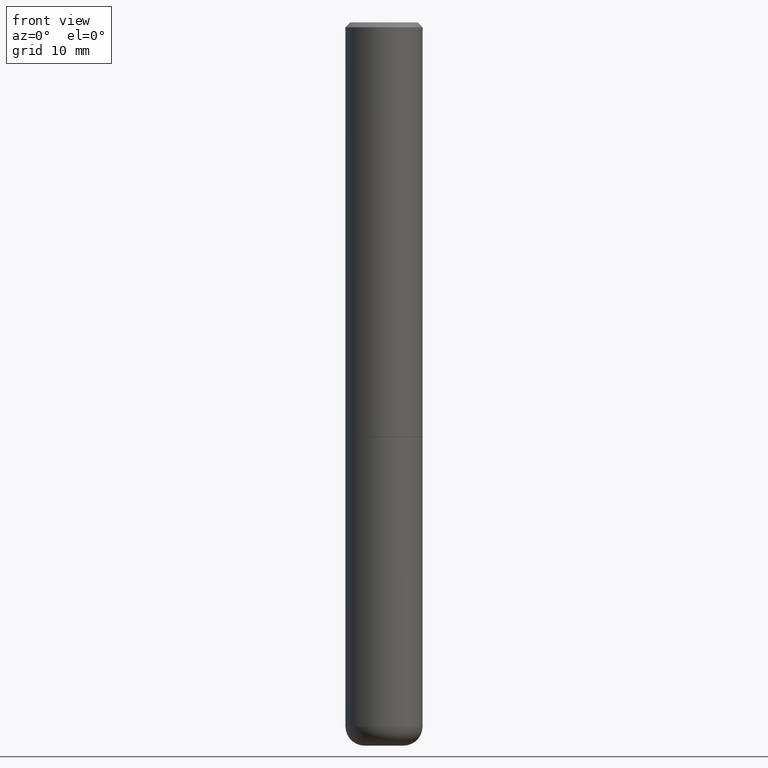
[diagram: clean part render]
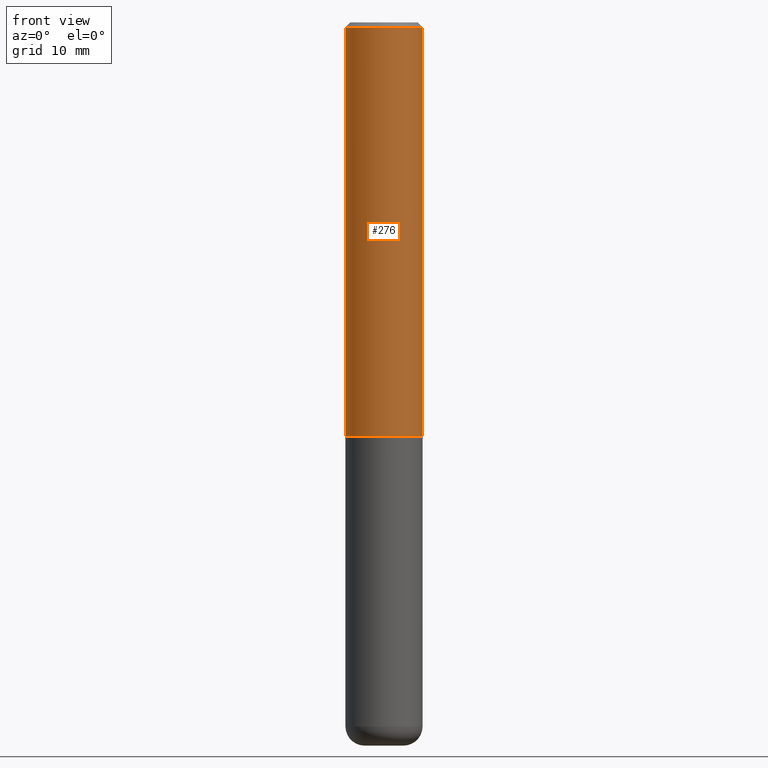
[diagram: same view with one face highlighted and labeled with its STEP entity id]
A machine part, front view. The second image highlights one B-rep face of the part: STEP entity #276.
In plain terms, the highlighted cylindrical surface (partial cylindrical patch) has radius 4.0005 mm, axis along (-0, 0, 1).
Its self-contained STEP definition (entity closure, byte-faithful):
#3 = EDGE_CURVE ( 'NONE', #282, #162, #89, .T. ) ;
#7 = LINE ( 'NONE', #111, #352 ) ;
#33 = CARTESIAN_POINT ( 'NONE',  ( 0.1575000000000000844, -1.099816621735587677E-15, 7.679978421878603638E-30 ) ) ;
#38 = CARTESIAN_POINT ( 'NONE',  ( 4.890937612370281041E-31, -6.982962677686302702E-17, -0.02000000000000003511 ) ) ;
#40 = CIRCLE ( 'NONE', #247, 0.1575000000000000289 ) ;
#42 = CARTESIAN_POINT ( 'NONE',  ( 4.137733220065250418E-29, -5.907586425322600791E-15, -1.691999999999999504 ) ) ;
#52 = DIRECTION ( 'NONE',  ( 1.000000000000000000, -6.982962677686265922E-15, 0.000000000000000000 ) ) ;
#54 = FACE_OUTER_BOUND ( 'NONE', #322, .T. ) ;
#57 = CYLINDRICAL_SURFACE ( 'NONE', #149, 0.1575000000000000844 ) ;
#69 = CARTESIAN_POINT ( 'NONE',  ( 0.000000000000000000, 0.000000000000000000, 0.000000000000000000 ) ) ;
#70 = EDGE_CURVE ( 'NONE', #162, #152, #349, .T. ) ;
#89 = CIRCLE ( 'NONE', #280, 0.1575000000000001954 ) ;
#111 = CARTESIAN_POINT ( 'NONE',  ( -0.1575000000000000844, 1.119104808822158392E-15, -7.747322767151481189E-30 ) ) ;
#112 = CARTESIAN_POINT ( 'NONE',  ( 0.1575000000000001954, -7.007403047058189060E-15, -1.691999999999999504 ) ) ;
#138 = DIRECTION ( 'NONE',  ( 1.000000000000000000, -6.982962677686267499E-15, 4.876176775795936353E-29 ) ) ;
#146 = CARTESIAN_POINT ( 'NONE',  ( 0.1575000000000000289, -1.150358061425879472E-15, -0.02000000000000003511 ) ) ;
#149 = AXIS2_PLACEMENT_3D ( 'NONE', #69, #385, #138 ) ;
#152 = VERTEX_POINT ( 'NONE', #146 ) ;
#159 = EDGE_CURVE ( 'NONE', #282, #411, #7, .T. ) ;
#162 = VERTEX_POINT ( 'NONE', #112 ) ;
#164 = ORIENTED_EDGE ( 'NONE', *, *, #70, .T. ) ;
#177 = EDGE_CURVE ( 'NONE', #411, #152, #40, .T. ) ;
#200 = DIRECTION ( 'NONE',  ( -2.445468806185136597E-29, 3.491481338843145583E-15, 1.000000000000000000 ) ) ;
#224 = ORIENTED_EDGE ( 'NONE', *, *, #177, .F. ) ;
#230 = DIRECTION ( 'NONE',  ( 1.000000000000000000, -6.982962677686267499E-15, 0.000000000000000000 ) ) ;
#234 = DIRECTION ( 'NONE',  ( -2.445468806185136597E-29, 3.491481338843145583E-15, 1.000000000000000000 ) ) ;
#247 = AXIS2_PLACEMENT_3D ( 'NONE', #38, #234, #230 ) ;
#266 = VECTOR ( 'NONE', #355, 39.37007874015748143 ) ;
#276 = ADVANCED_FACE ( 'NONE', ( #54 ), #57, .T. ) ;
#280 = AXIS2_PLACEMENT_3D ( 'NONE', #42, #200, #52 ) ;
#282 = VERTEX_POINT ( 'NONE', #330 ) ;
#296 = DIRECTION ( 'NONE',  ( -2.445468806185136877E-29, 3.491481338843145188E-15, 1.000000000000000000 ) ) ;
#322 = EDGE_LOOP ( 'NONE', ( #350, #376, #164, #224 ) ) ;
#330 = CARTESIAN_POINT ( 'NONE',  ( -0.1575000000000001954, -1.869603217227570102E-15, -1.691999999999999504 ) ) ;
#349 = LINE ( 'NONE', #33, #266 ) ;
#350 = ORIENTED_EDGE ( 'NONE', *, *, #159, .F. ) ;
#352 = VECTOR ( 'NONE', #296, 39.37007874015748143 ) ;
#355 = DIRECTION ( 'NONE',  ( -2.445468806185136877E-29, 3.491481338843145188E-15, 1.000000000000000000 ) ) ;
#360 = CARTESIAN_POINT ( 'NONE',  ( -0.1575000000000000289, 1.029986994958724182E-15, -0.02000000000000003511 ) ) ;
#376 = ORIENTED_EDGE ( 'NONE', *, *, #3, .T. ) ;
#385 = DIRECTION ( 'NONE',  ( -2.445468806185136597E-29, 3.491481338843145583E-15, 1.000000000000000000 ) ) ;
#411 = VERTEX_POINT ( 'NONE', #360 ) ;